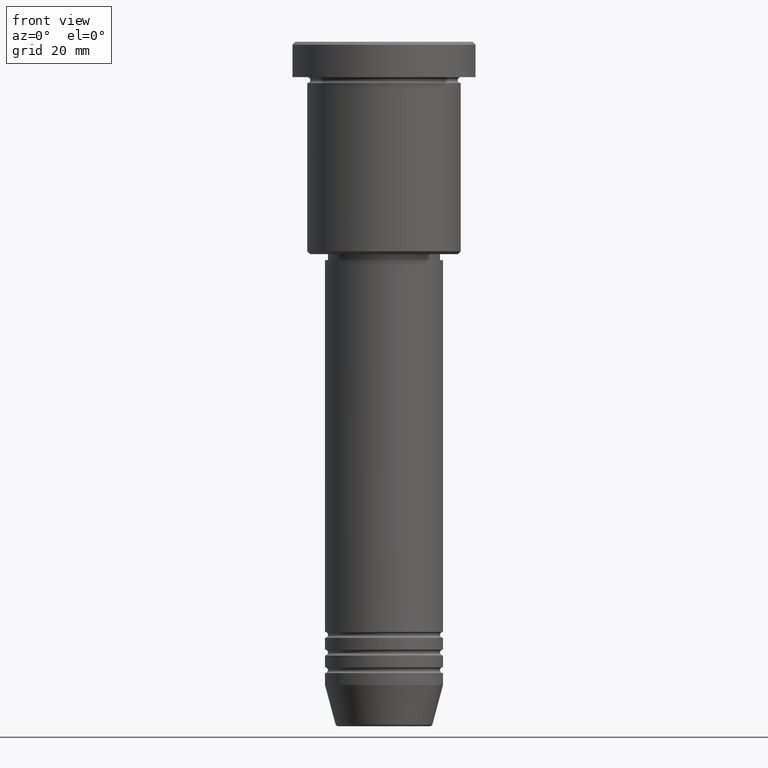
[diagram: clean part render]
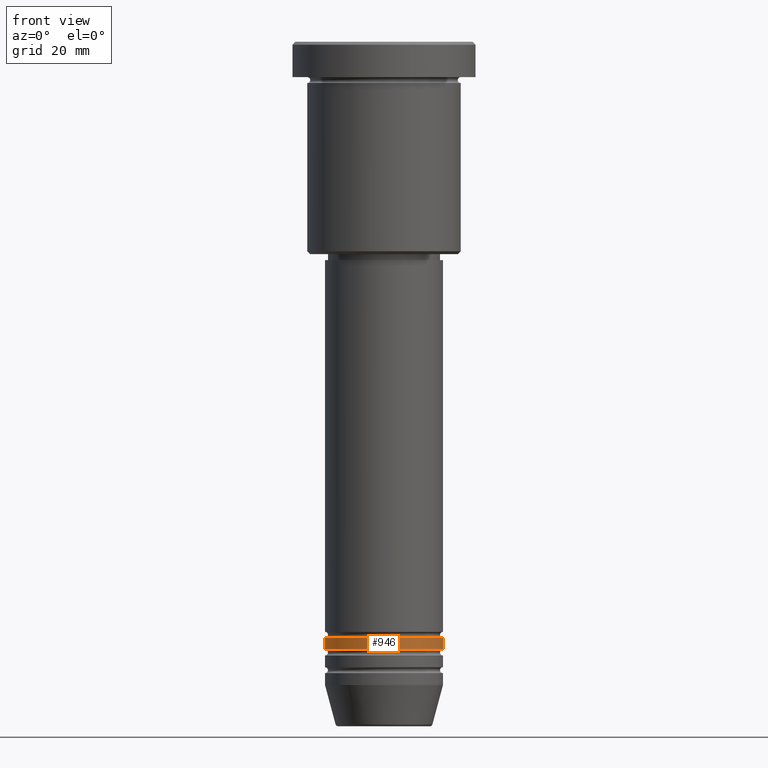
[diagram: same view with one face highlighted and labeled with its STEP entity id]
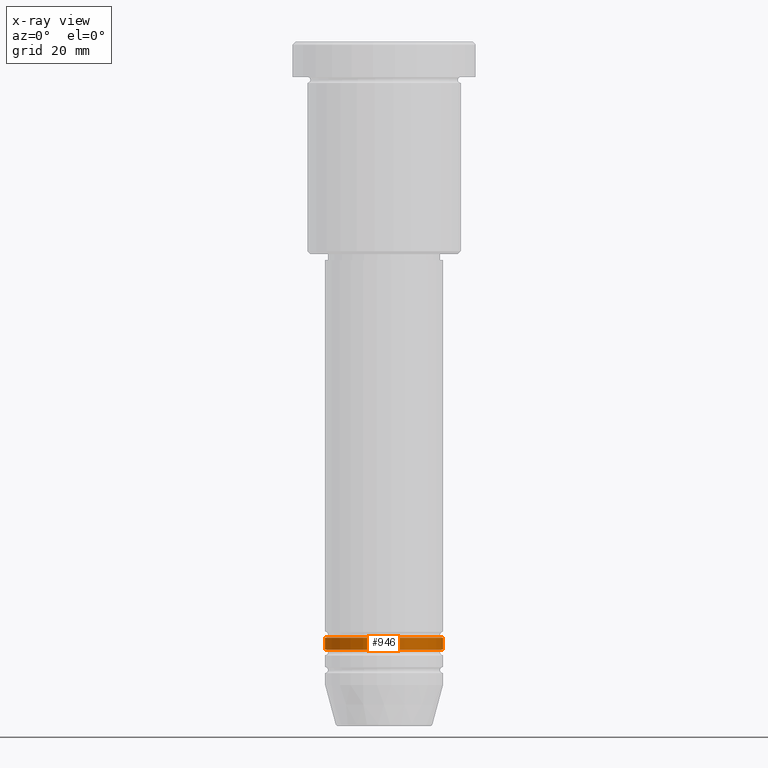
[diagram: x-ray of the same camera — body ghosted, the highlighted face saturated]
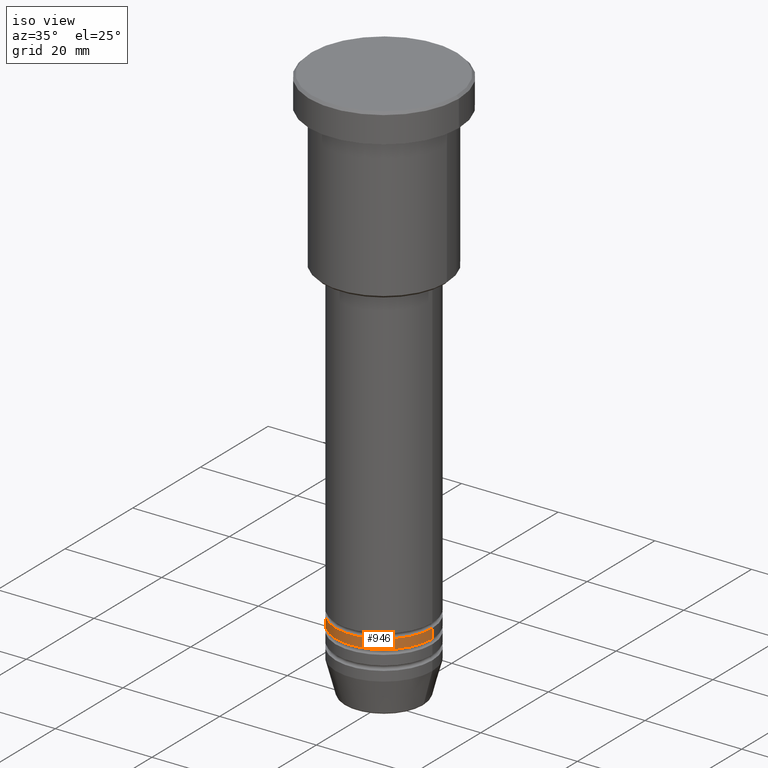
[diagram: same view with one face highlighted and labeled with its STEP entity id]
A machine part, front view. The second image highlights one B-rep face of the part: STEP entity #946.
The next image is the same camera in x-ray: the body ghosted, the highlighted face saturated — about 0% of this face is hidden behind the body in this view.
A second angle (iso view) of the same face is appended — the face is thin or edge-on in the first view.
In plain terms, the highlighted cylindrical surface (partial cylindrical patch) has radius 10 mm, axis along (-0, -0, 1).
Its self-contained STEP definition (entity closure, byte-faithful):
#5 = DIRECTION ( 'NONE',  ( 1.000000000000000000, 0.000000000000000000, 0.000000000000000000 ) ) ;
#45 = DIRECTION ( 'NONE',  ( -0.000000000000000000, -0.000000000000000000, 1.000000000000000000 ) ) ;
#71 = AXIS2_PLACEMENT_3D ( 'NONE', #1081, #986, #713 ) ;
#140 = CARTESIAN_POINT ( 'NONE',  ( 10.00000000000000000, 0.000000000000000000, 0.000000000000000000 ) ) ;
#169 = CIRCLE ( 'NONE', #1019, 10.00000000000000000 ) ;
#201 = DIRECTION ( 'NONE',  ( -0.000000000000000000, -0.000000000000000000, 1.000000000000000000 ) ) ;
#211 = CARTESIAN_POINT ( 'NONE',  ( -10.00000000000000000, 1.224646799147353256E-15, -102.9999999999999858 ) ) ;
#243 = VECTOR ( 'NONE', #662, 1000.000000000000000 ) ;
#259 = CARTESIAN_POINT ( 'NONE',  ( 10.00000000000000000, 0.000000000000000000, -102.9999999999999858 ) ) ;
#275 = FACE_OUTER_BOUND ( 'NONE', #540, .T. ) ;
#307 = ORIENTED_EDGE ( 'NONE', *, *, #771, .F. ) ;
#371 = AXIS2_PLACEMENT_3D ( 'NONE', #1002, #45, #657 ) ;
#378 = CARTESIAN_POINT ( 'NONE',  ( -10.00000000000000000, 1.224646799147353256E-15, 0.000000000000000000 ) ) ;
#438 = VERTEX_POINT ( 'NONE', #211 ) ;
#455 = ORIENTED_EDGE ( 'NONE', *, *, #511, .T. ) ;
#466 = CARTESIAN_POINT ( 'NONE',  ( 10.00000000000000000, 0.000000000000000000, -100.9999999999999858 ) ) ;
#471 = EDGE_CURVE ( 'NONE', #438, #734, #924, .T. ) ;
#486 = ORIENTED_EDGE ( 'NONE', *, *, #1040, .T. ) ;
#511 = EDGE_CURVE ( 'NONE', #438, #702, #169, .T. ) ;
#539 = VECTOR ( 'NONE', #857, 1000.000000000000000 ) ;
#540 = EDGE_LOOP ( 'NONE', ( #850, #455, #486, #307 ) ) ;
#628 = CYLINDRICAL_SURFACE ( 'NONE', #371, 10.00000000000000000 ) ;
#657 = DIRECTION ( 'NONE',  ( 1.000000000000000000, 0.000000000000000000, 0.000000000000000000 ) ) ;
#662 = DIRECTION ( 'NONE',  ( -0.000000000000000000, -0.000000000000000000, 1.000000000000000000 ) ) ;
#702 = VERTEX_POINT ( 'NONE', #259 ) ;
#713 = DIRECTION ( 'NONE',  ( 1.000000000000000000, 0.000000000000000000, 0.000000000000000000 ) ) ;
#734 = VERTEX_POINT ( 'NONE', #1181 ) ;
#747 = CARTESIAN_POINT ( 'NONE',  ( 0.000000000000000000, 0.000000000000000000, -102.9999999999999858 ) ) ;
#771 = EDGE_CURVE ( 'NONE', #734, #910, #1120, .T. ) ;
#850 = ORIENTED_EDGE ( 'NONE', *, *, #471, .F. ) ;
#857 = DIRECTION ( 'NONE',  ( -0.000000000000000000, -0.000000000000000000, 1.000000000000000000 ) ) ;
#910 = VERTEX_POINT ( 'NONE', #466 ) ;
#924 = LINE ( 'NONE', #378, #243 ) ;
#946 = ADVANCED_FACE ( 'NONE', ( #275 ), #628, .T. ) ;
#948 = LINE ( 'NONE', #140, #539 ) ;
#986 = DIRECTION ( 'NONE',  ( -0.000000000000000000, -0.000000000000000000, 1.000000000000000000 ) ) ;
#1002 = CARTESIAN_POINT ( 'NONE',  ( 0.000000000000000000, 0.000000000000000000, 0.000000000000000000 ) ) ;
#1019 = AXIS2_PLACEMENT_3D ( 'NONE', #747, #201, #5 ) ;
#1040 = EDGE_CURVE ( 'NONE', #702, #910, #948, .T. ) ;
#1081 = CARTESIAN_POINT ( 'NONE',  ( 0.000000000000000000, 0.000000000000000000, -100.9999999999999858 ) ) ;
#1120 = CIRCLE ( 'NONE', #71, 10.00000000000000000 ) ;
#1181 = CARTESIAN_POINT ( 'NONE',  ( -10.00000000000000000, 1.224646799147353256E-15, -100.9999999999999858 ) ) ;